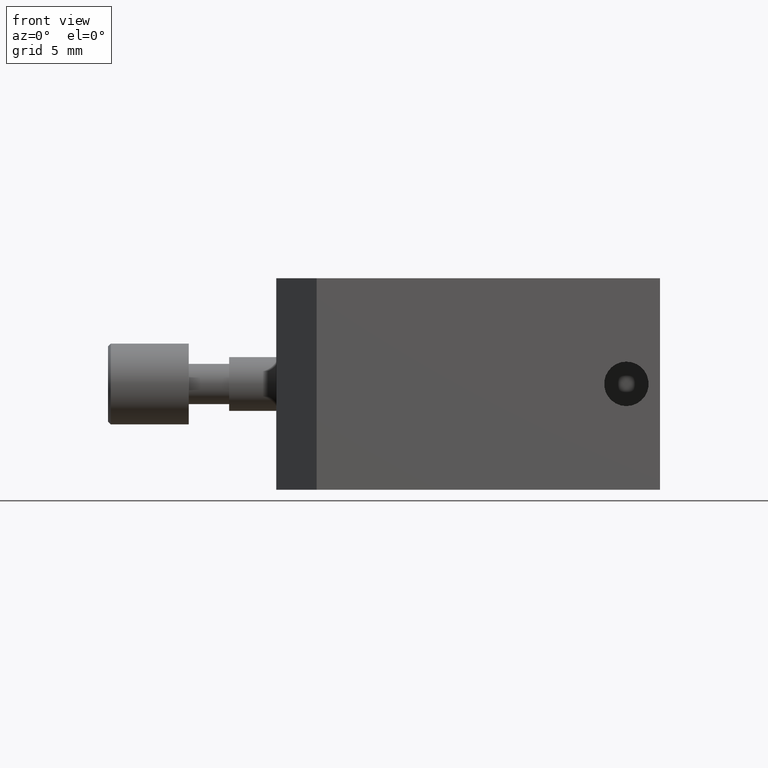
[diagram: clean part render]
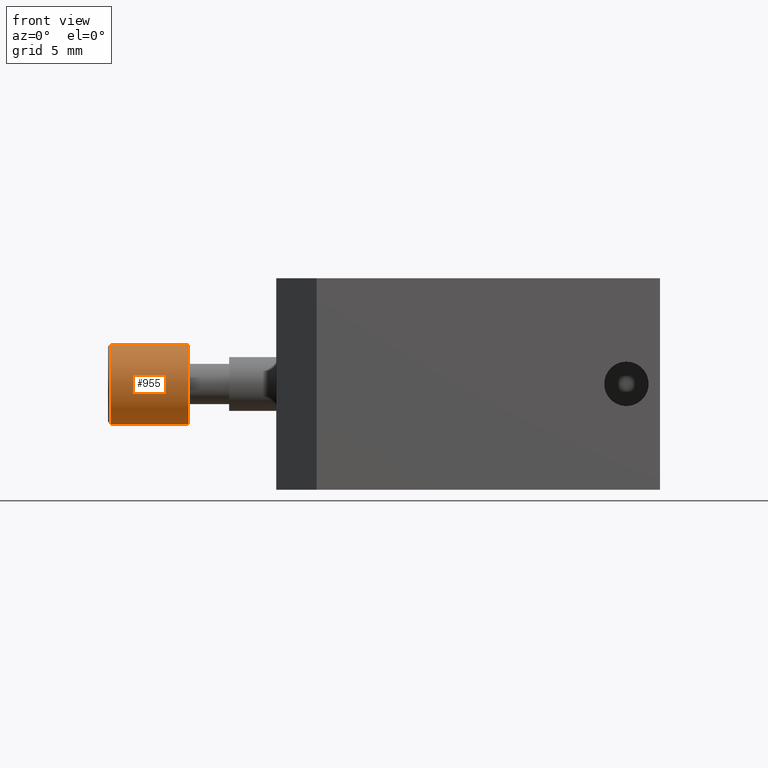
[diagram: same view with one face highlighted and labeled with its STEP entity id]
A machine part, front view. The second image highlights one B-rep face of the part: STEP entity #955.
In plain terms, the highlighted cylindrical surface (partial cylindrical patch) has radius 3 mm, axis along (1, 0, -0).
Its self-contained STEP definition (entity closure, byte-faithful):
#35 = VECTOR ( 'NONE', #198, 1000.000000000000000 ) ;
#50 = EDGE_CURVE ( 'NONE', #810, #79, #201, .T. ) ;
#55 = ORIENTED_EDGE ( 'NONE', *, *, #314, .T. ) ;
#64 = CIRCLE ( 'NONE', #195, 3.000000000000000400 ) ;
#68 = EDGE_LOOP ( 'NONE', ( #794, #428, #55, #120 ) ) ;
#79 = VERTEX_POINT ( 'NONE', #724 ) ;
#83 = CYLINDRICAL_SURFACE ( 'NONE', #846, 3.000000000000000400 ) ;
#119 = DIRECTION ( 'NONE',  ( 0.0000000000000000000, -0.1960853106169125300, 0.9805868400913143600 ) ) ;
#120 = ORIENTED_EDGE ( 'NONE', *, *, #50, .T. ) ;
#124 = DIRECTION ( 'NONE',  ( 1.000000000000000000, 0.0000000000000000000, -0.0000000000000000000 ) ) ;
#134 = CARTESIAN_POINT ( 'NONE',  ( -30.77105950749485800, -2.188055956847394100, 34.94176052027395200 ) ) ;
#195 = AXIS2_PLACEMENT_3D ( 'NONE', #911, #447, #980 ) ;
#198 = DIRECTION ( 'NONE',  ( 1.000000000000000000, 0.0000000000000000000, -0.0000000000000000000 ) ) ;
#201 = CIRCLE ( 'NONE', #508, 3.000000000000000400 ) ;
#203 = CARTESIAN_POINT ( 'NONE',  ( -30.97105950749485700, -2.188055956847394100, 34.94176052027395200 ) ) ;
#258 = LINE ( 'NONE', #592, #35 ) ;
#273 = CARTESIAN_POINT ( 'NONE',  ( -24.97105950749486100, -1.011544093145919400, 29.05823947972606500 ) ) ;
#313 = EDGE_CURVE ( 'NONE', #321, #79, #863, .T. ) ;
#314 = EDGE_CURVE ( 'NONE', #500, #810, #258, .T. ) ;
#321 = VERTEX_POINT ( 'NONE', #134 ) ;
#339 = EDGE_CURVE ( 'NONE', #321, #500, #64, .T. ) ;
#423 = DIRECTION ( 'NONE',  ( 1.000000000000000000, 0.0000000000000000000, -0.0000000000000000000 ) ) ;
#428 = ORIENTED_EDGE ( 'NONE', *, *, #339, .T. ) ;
#447 = DIRECTION ( 'NONE',  ( 1.000000000000000000, -0.0000000000000000000, -0.0000000000000000000 ) ) ;
#483 = VECTOR ( 'NONE', #124, 1000.000000000000000 ) ;
#500 = VERTEX_POINT ( 'NONE', #688 ) ;
#503 = DIRECTION ( 'NONE',  ( 0.0000000000000000000, 0.1960853106169125300, -0.9805868400913143600 ) ) ;
#508 = AXIS2_PLACEMENT_3D ( 'NONE', #773, #549, #119 ) ;
#520 = FACE_OUTER_BOUND ( 'NONE', #68, .T. ) ;
#549 = DIRECTION ( 'NONE',  ( -1.000000000000000000, 0.0000000000000000000, 0.0000000000000000000 ) ) ;
#592 = CARTESIAN_POINT ( 'NONE',  ( -30.97105950749485700, -1.011544093145919400, 29.05823947972606500 ) ) ;
#688 = CARTESIAN_POINT ( 'NONE',  ( -30.77105950749485800, -1.011544093145919400, 29.05823947972606500 ) ) ;
#724 = CARTESIAN_POINT ( 'NONE',  ( -24.97105950749486100, -2.188055956847394100, 34.94176052027395200 ) ) ;
#773 = CARTESIAN_POINT ( 'NONE',  ( -24.97105950749486100, -1.599800024996657100, 32.00000000000000700 ) ) ;
#794 = ORIENTED_EDGE ( 'NONE', *, *, #313, .F. ) ;
#810 = VERTEX_POINT ( 'NONE', #273 ) ;
#846 = AXIS2_PLACEMENT_3D ( 'NONE', #884, #423, #503 ) ;
#863 = LINE ( 'NONE', #203, #483 ) ;
#884 = CARTESIAN_POINT ( 'NONE',  ( -30.97105950749485700, -1.599800024996657100, 32.00000000000000700 ) ) ;
#911 = CARTESIAN_POINT ( 'NONE',  ( -30.77105950749485800, -1.599800024996657100, 32.00000000000000700 ) ) ;
#955 = ADVANCED_FACE ( 'NONE', ( #520 ), #83, .T. ) ;
#980 = DIRECTION ( 'NONE',  ( 0.0000000000000000000, -0.1960853106169125300, 0.9805868400913143600 ) ) ;